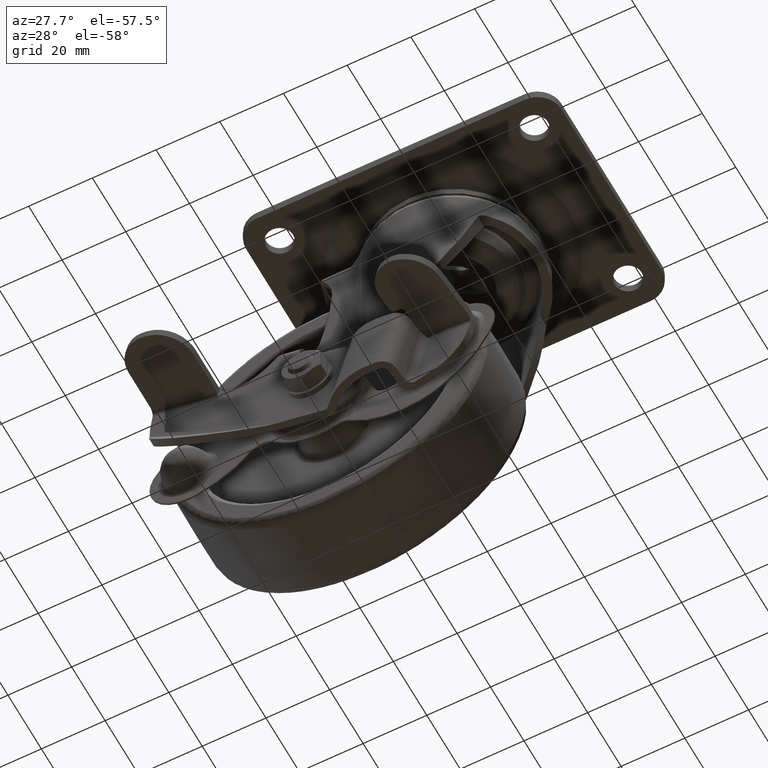
[diagram: clean part render]
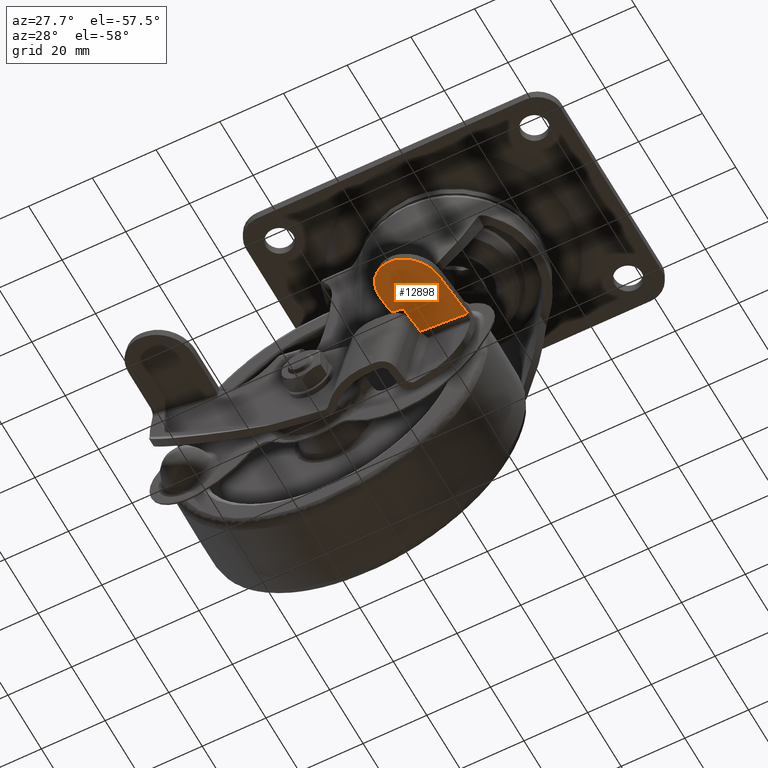
[diagram: same view with one face highlighted and labeled with its STEP entity id]
A machine part, auxiliary view. The second image highlights one B-rep face of the part: STEP entity #12898.
In plain terms, the highlighted face is a freeform B-spline surface patch.
Its self-contained STEP definition (entity closure, byte-faithful):
#12098=CARTESIAN_POINT('',(17.607649323508401,-25.298661930744601,-78.663382655920287));
#12099=VERTEX_POINT('',#12098);
#12110=CARTESIAN_POINT('',(1.994894665951740,-23.891555741848752,-74.581443354947794));
#12111=VERTEX_POINT('',#12110);
#12112=CARTESIAN_POINT('',(1.994894665951740,-23.891555741848752,-74.581443354947794));
#12113=CARTESIAN_POINT('',(17.607649323508401,-25.298661930744601,-78.663382655920287));
#12114=QUASI_UNIFORM_CURVE('',1,(#12112,#12113),.UNSPECIFIED.,.F.,.U.);
#12115=EDGE_CURVE('',#12111,#12099,#12114,.T.);
#12694=CARTESIAN_POINT('',(-2.988305269729540,-38.202024702435942,-73.623571552001195));
#12695=VERTEX_POINT('',#12694);
#12701=CARTESIAN_POINT('',(5.752314997394638,-49.030303628058768,-76.143478862766926));
#12702=VERTEX_POINT('',#12701);
#12703=CARTESIAN_POINT('',(5.752314997394638,-49.030303628058768,-76.143478862766926));
#12704=CARTESIAN_POINT('',(4.648214688912266,-48.931507994498453,-75.854829565463262));
#12705=CARTESIAN_POINT('',(2.942117685515638,-48.463129175623180,-75.401418554490022));
#12706=CARTESIAN_POINT('',(0.956545317811094,-47.260324059767257,-74.858361705151069));
#12707=CARTESIAN_POINT('',(-0.509218181669251,-45.945022427250052,-74.447483956163637));
#12708=CARTESIAN_POINT('',(-1.739076616760998,-44.280359826818341,-74.089620674782537));
#12709=CARTESIAN_POINT('',(-2.604921208201894,-42.296677176087080,-73.818705078478658));
#12710=CARTESIAN_POINT('',(-3.035613476618139,-40.251300160251603,-73.659200960709185));
#12711=CARTESIAN_POINT('',(-3.050827761461996,-38.894602533945793,-73.623544679309930));
#12712=CARTESIAN_POINT('',(-2.988305269729540,-38.202024702435942,-73.623571552001195));
#12713=B_SPLINE_CURVE_WITH_KNOTS('',3,(#12703,#12704,#12705,#12706,#12707,#12708,#12709,#12710,#12711,#12712),.UNSPECIFIED.,.F.,.U.,(4,1,1,1,1,1,1,4),(0.000000374483546,3.436127878437103,5.399656406548735,7.117805794424484,9.449334679877829,11.658326214660891,13.621890369285500,15.708061828786100),.UNSPECIFIED.);
#12714=EDGE_CURVE('',#12702,#12695,#12713,.T.);
#12716=CARTESIAN_POINT('',(16.288159836155199,-39.939316283625637,-78.663384146090010));
#12717=VERTEX_POINT('',#12716);
#12718=CARTESIAN_POINT('',(16.288159836155199,-39.939316283625637,-78.663384146090010));
#12719=CARTESIAN_POINT('',(16.200418978865919,-40.917177443769937,-78.663485107562849));
#12720=CARTESIAN_POINT('',(15.819016060371670,-42.525425771829099,-78.602161282902145));
#12721=CARTESIAN_POINT('',(14.667682155576220,-44.785736297748038,-78.356402526015813));
#12722=CARTESIAN_POINT('',(13.273419559185310,-46.440435874908943,-78.033486881966226));
#12723=CARTESIAN_POINT('',(11.660817935857150,-47.651470907294438,-77.643576725655592));
#12724=CARTESIAN_POINT('',(10.089516942698110,-48.451459350971788,-77.254770040636060));
#12725=CARTESIAN_POINT('',(8.136735653457810,-49.033028930565138,-76.761924128580176));
#12726=CARTESIAN_POINT('',(6.619689952196155,-49.108789908383450,-76.370260522103067));
#12727=CARTESIAN_POINT('',(5.752314997394638,-49.030303628058768,-76.143478862766926));
#12728=B_SPLINE_CURVE_WITH_KNOTS('',3,(#12718,#12719,#12720,#12721,#12722,#12723,#12724,#12725,#12726,#12727),.UNSPECIFIED.,.F.,.U.,(4,1,1,1,1,1,1,4),(0.000000374495004,2.945252086895314,4.908791686845811,7.608640625610882,9.449334679884714,11.044713356782930,13.008252225481490,15.708061828786050),.UNSPECIFIED.);
#12729=EDGE_CURVE('',#12717,#12702,#12728,.T.);
#12745=CARTESIAN_POINT('',(-2.562883317765720,-33.481710406413050,-73.623571968977103));
#12746=VERTEX_POINT('',#12745);
#12752=CARTESIAN_POINT('',(-2.562883317765720,-33.481710406413050,-73.623571968977103));
#12753=CARTESIAN_POINT('',(-2.988305269729540,-38.202024702435942,-73.623571552001195));
#12754=QUASI_UNIFORM_CURVE('',1,(#12752,#12753),.UNSPECIFIED.,.F.,.U.);
#12755=EDGE_CURVE('',#12746,#12695,#12754,.T.);
#12776=CARTESIAN_POINT('',(-1.509302915723710,-32.572615198613647,-73.875561521145798));
#12777=VERTEX_POINT('',#12776);
#12783=CARTESIAN_POINT('',(-2.562883317765720,-33.481710406413050,-73.623571968977103));
#12784=CARTESIAN_POINT('',(-2.548528239930004,-33.318654318498247,-73.623483683142254));
#12785=CARTESIAN_POINT('',(-2.455929140407548,-33.048057163807307,-73.641173800741342));
#12786=CARTESIAN_POINT('',(-2.224441658894059,-32.792987674593633,-73.695246509361709));
#12787=CARTESIAN_POINT('',(-1.925081794783044,-32.603498255901243,-73.768454236075570));
#12788=CARTESIAN_POINT('',(-1.682887539938544,-32.556442562814318,-73.830165645500472));
#12789=CARTESIAN_POINT('',(-1.509302915723710,-32.572615198613647,-73.875561521145798));
#12790=B_SPLINE_CURVE_WITH_KNOTS('',3,(#12783,#12784,#12785,#12786,#12787,#12788,#12789),.UNSPECIFIED.,.F.,.U.,(4,1,1,1,4),(0.000001366131139,0.490935566834321,0.834474613818910,1.030887754381197,1.570948204372350),.UNSPECIFIED.);
#12791=EDGE_CURVE('',#12746,#12777,#12790,.T.);
#12803=CARTESIAN_POINT('',(0.224645588179751,-32.728887408019297,-74.328900631720401));
#12804=VERTEX_POINT('',#12803);
#12810=CARTESIAN_POINT('',(0.224645588179751,-32.728887408019297,-74.328900631720401));
#12811=CARTESIAN_POINT('',(-1.509302915723710,-32.572615198613647,-73.875561521145798));
#12812=QUASI_UNIFORM_CURVE('',1,(#12810,#12811),.UNSPECIFIED.,.F.,.U.);
#12813=EDGE_CURVE('',#12804,#12777,#12812,.T.);
#12834=CARTESIAN_POINT('',(1.280750615966914,-31.815443467923000,-74.581443282140796));
#12835=VERTEX_POINT('',#12834);
#12841=CARTESIAN_POINT('',(1.280750615966914,-31.815443467923000,-74.581443282140796));
#12842=CARTESIAN_POINT('',(1.267065722686248,-31.979292206108511,-74.581723902193914));
#12843=CARTESIAN_POINT('',(1.185729388966203,-32.219383801704481,-74.566241681042271));
#12844=CARTESIAN_POINT('',(0.957273947087373,-32.498227917805032,-74.513511001820760));
#12845=CARTESIAN_POINT('',(0.658389768163269,-32.698242552810129,-74.440672650067640));
#12846=CARTESIAN_POINT('',(0.383027046512851,-32.743841945539607,-74.370325209582063));
#12847=CARTESIAN_POINT('',(0.224645588179751,-32.728887408019297,-74.328900631720401));
#12848=B_SPLINE_CURVE_WITH_KNOTS('',3,(#12841,#12842,#12843,#12844,#12845,#12846,#12847),.UNSPECIFIED.,.F.,.U.,(4,1,1,1,4),(0.000001390300230,0.493049992703792,0.739647452887814,1.084665099570997,1.577713701974668),.UNSPECIFIED.);
#12849=EDGE_CURVE('',#12835,#12804,#12848,.T.);
#12868=CARTESIAN_POINT('',(1.994894665951740,-23.891555741848752,-74.581443354947794));
#12869=CARTESIAN_POINT('',(1.280750615966914,-31.815443467923000,-74.581443282140796));
#12870=QUASI_UNIFORM_CURVE('',1,(#12868,#12869),.UNSPECIFIED.,.F.,.U.);
#12871=EDGE_CURVE('',#12111,#12835,#12870,.T.);
#12878=CARTESIAN_POINT('',(-4.010241932872694,-22.651251579278401,-72.995066270888401));
#12879=CARTESIAN_POINT('',(18.644290752543100,-22.583733883682591,-78.868770846402185));
#12880=CARTESIAN_POINT('',(-4.090193296737612,-50.357110980392783,-73.621910287275455));
#12881=CARTESIAN_POINT('',(18.564339388678182,-50.289593284796958,-79.495614862789239));
#12882=B_SPLINE_SURFACE_WITH_KNOTS('',1,1,((#12878,#12880),(#12879,#12881)),.UNSPECIFIED.,.F.,.F.,.U.,(2,2),(2,2),(0.0,23.403692342752301),(0.0,27.713064983790261),.UNSPECIFIED.);
#12883=ORIENTED_EDGE('',*,*,#12871,.F.);
#12884=ORIENTED_EDGE('',*,*,#12115,.T.);
#12885=CARTESIAN_POINT('',(16.288159836155199,-39.939316283625637,-78.663384146090010));
#12886=CARTESIAN_POINT('',(17.607649323508401,-25.298661930744601,-78.663382655920287));
#12887=QUASI_UNIFORM_CURVE('',1,(#12885,#12886),.UNSPECIFIED.,.F.,.U.);
#12888=EDGE_CURVE('',#12717,#12099,#12887,.T.);
#12889=ORIENTED_EDGE('',*,*,#12888,.F.);
#12890=ORIENTED_EDGE('',*,*,#12729,.T.);
#12891=ORIENTED_EDGE('',*,*,#12714,.T.);
#12892=ORIENTED_EDGE('',*,*,#12755,.F.);
#12893=ORIENTED_EDGE('',*,*,#12791,.T.);
#12894=ORIENTED_EDGE('',*,*,#12813,.F.);
#12895=ORIENTED_EDGE('',*,*,#12849,.F.);
#12896=EDGE_LOOP('',(#12883,#12884,#12889,#12890,#12891,#12892,#12893,#12894,#12895));
#12897=FACE_OUTER_BOUND('',#12896,.T.);
#12898=ADVANCED_FACE('',(#12897),#12882,.T.);